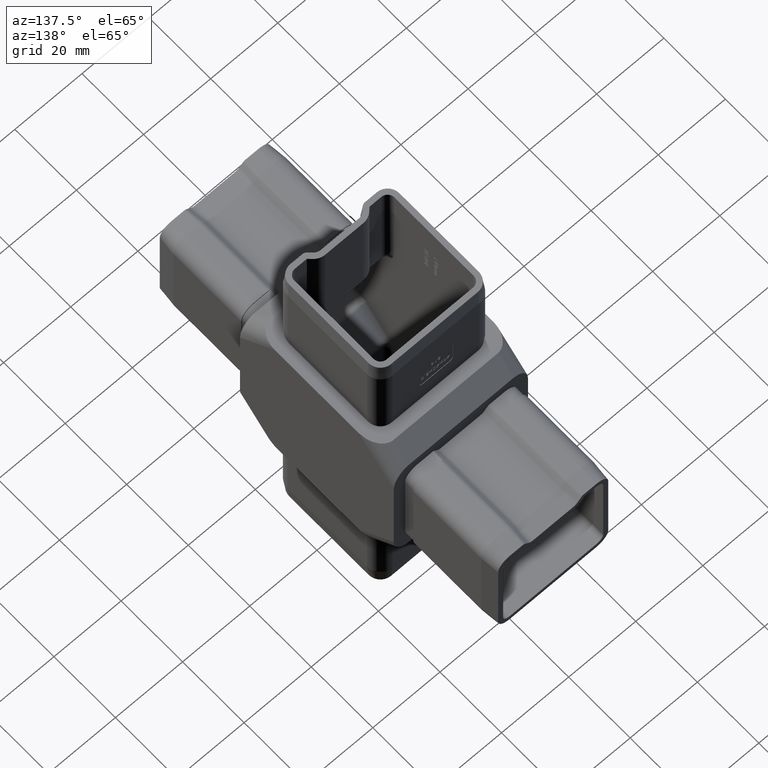
[diagram: clean part render]
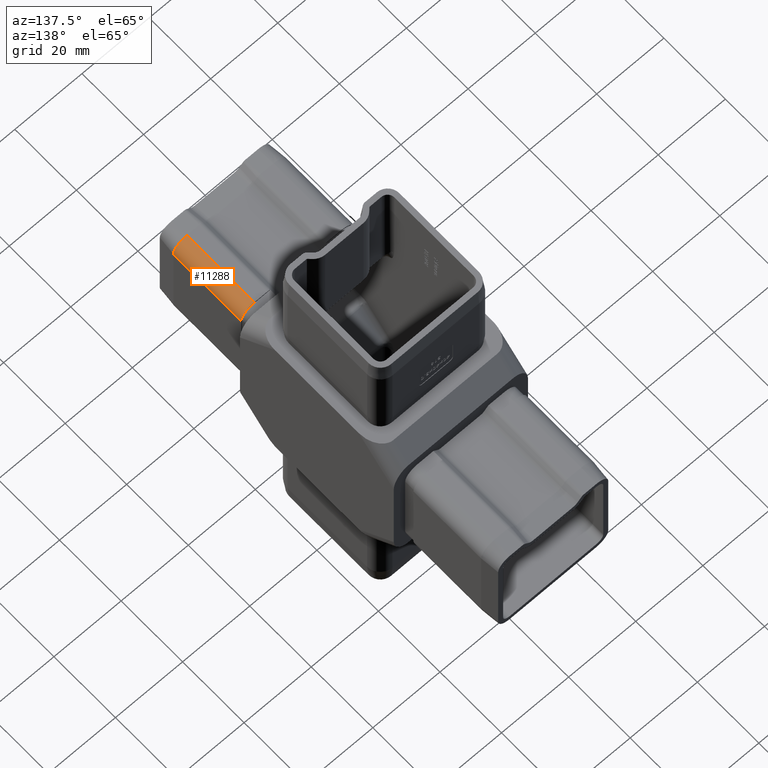
[diagram: same view with one face highlighted and labeled with its STEP entity id]
A machine part, auxiliary view. The second image highlights one B-rep face of the part: STEP entity #11288.
In plain terms, the highlighted cylindrical surface (edge-blend (fillet) strip) has radius 4 mm, axis along (-0, 1, -0).
Its self-contained STEP definition (entity closure, byte-faithful):
#55 = FACE_OUTER_BOUND ( 'NONE', #8322, .T. ) ;
#940 = DIRECTION ( 'NONE',  ( -0.0000000000000000000, 1.000000000000000000, -0.0000000000000000000 ) ) ;
#1056 = CARTESIAN_POINT ( 'NONE',  ( 12.89999999999999900, -28.00000000000000000, 12.90000000000000600 ) ) ;
#1532 = VECTOR ( 'NONE', #15045, 1000.000000000000000 ) ;
#4848 = ORIENTED_EDGE ( 'NONE', *, *, #28216, .T. ) ;
#6453 = VERTEX_POINT ( 'NONE', #28738 ) ;
#6482 = CIRCLE ( 'NONE', #22374, 4.000000000000000000 ) ;
#6974 = CYLINDRICAL_SURFACE ( 'NONE', #31599, 4.000000000000003600 ) ;
#7475 = CARTESIAN_POINT ( 'NONE',  ( 16.89999999999999900, -28.00000000000000000, 12.90000000000000700 ) ) ;
#8322 = EDGE_LOOP ( 'NONE', ( #29534, #22884, #4848, #11351 ) ) ;
#10052 = DIRECTION ( 'NONE',  ( 0.0000000000000000000, -1.000000000000000000, 0.0000000000000000000 ) ) ;
#10216 = CARTESIAN_POINT ( 'NONE',  ( 12.89999999999999900, -28.00000000000000000, 16.90000000000000600 ) ) ;
#11000 = LINE ( 'NONE', #30270, #11799 ) ;
#11288 = ADVANCED_FACE ( 'NONE', ( #55 ), #6974, .T. ) ;
#11334 = AXIS2_PLACEMENT_3D ( 'NONE', #1056, #26632, #24129 ) ;
#11351 = ORIENTED_EDGE ( 'NONE', *, *, #23787, .T. ) ;
#11799 = VECTOR ( 'NONE', #30378, 1000.000000000000000 ) ;
#12360 = CARTESIAN_POINT ( 'NONE',  ( 16.90000000000000600, -55.00000000000000000, 12.90000000000000600 ) ) ;
#15045 = DIRECTION ( 'NONE',  ( -0.0000000000000000000, 1.000000000000000000, -0.0000000000000000000 ) ) ;
#15779 = CIRCLE ( 'NONE', #11334, 4.000000000000000000 ) ;
#16640 = EDGE_CURVE ( 'NONE', #6453, #31103, #6482, .T. ) ;
#16841 = VERTEX_POINT ( 'NONE', #10216 ) ;
#18211 = DIRECTION ( 'NONE',  ( 0.0000000000000000000, 0.0000000000000000000, 1.000000000000000000 ) ) ;
#18331 = VERTEX_POINT ( 'NONE', #7475 ) ;
#21546 = CARTESIAN_POINT ( 'NONE',  ( 12.89999999999999900, -50.00000000000000000, 16.90000000000000600 ) ) ;
#22166 = EDGE_CURVE ( 'NONE', #31103, #16841, #11000, .T. ) ;
#22374 = AXIS2_PLACEMENT_3D ( 'NONE', #24594, #10052, #29876 ) ;
#22884 = ORIENTED_EDGE ( 'NONE', *, *, #16640, .F. ) ;
#23520 = LINE ( 'NONE', #12360, #1532 ) ;
#23787 = EDGE_CURVE ( 'NONE', #18331, #16841, #15779, .T. ) ;
#24129 = DIRECTION ( 'NONE',  ( 0.0000000000000000000, 0.0000000000000000000, -1.000000000000000000 ) ) ;
#24594 = CARTESIAN_POINT ( 'NONE',  ( 12.89999999999999900, -50.00000000000000000, 12.90000000000000600 ) ) ;
#26632 = DIRECTION ( 'NONE',  ( 0.0000000000000000000, -1.000000000000000000, 0.0000000000000000000 ) ) ;
#27900 = CARTESIAN_POINT ( 'NONE',  ( 12.89999999999999900, -55.00000000000000000, 12.90000000000000600 ) ) ;
#28216 = EDGE_CURVE ( 'NONE', #6453, #18331, #23520, .T. ) ;
#28738 = CARTESIAN_POINT ( 'NONE',  ( 16.89999999999999900, -50.00000000000000000, 12.90000000000000700 ) ) ;
#29534 = ORIENTED_EDGE ( 'NONE', *, *, #22166, .F. ) ;
#29876 = DIRECTION ( 'NONE',  ( 0.0000000000000000000, 0.0000000000000000000, -1.000000000000000000 ) ) ;
#30270 = CARTESIAN_POINT ( 'NONE',  ( 12.89999999999999900, -55.00000000000000000, 16.90000000000000900 ) ) ;
#30378 = DIRECTION ( 'NONE',  ( -0.0000000000000000000, 1.000000000000000000, -0.0000000000000000000 ) ) ;
#31103 = VERTEX_POINT ( 'NONE', #21546 ) ;
#31599 = AXIS2_PLACEMENT_3D ( 'NONE', #27900, #940, #18211 ) ;